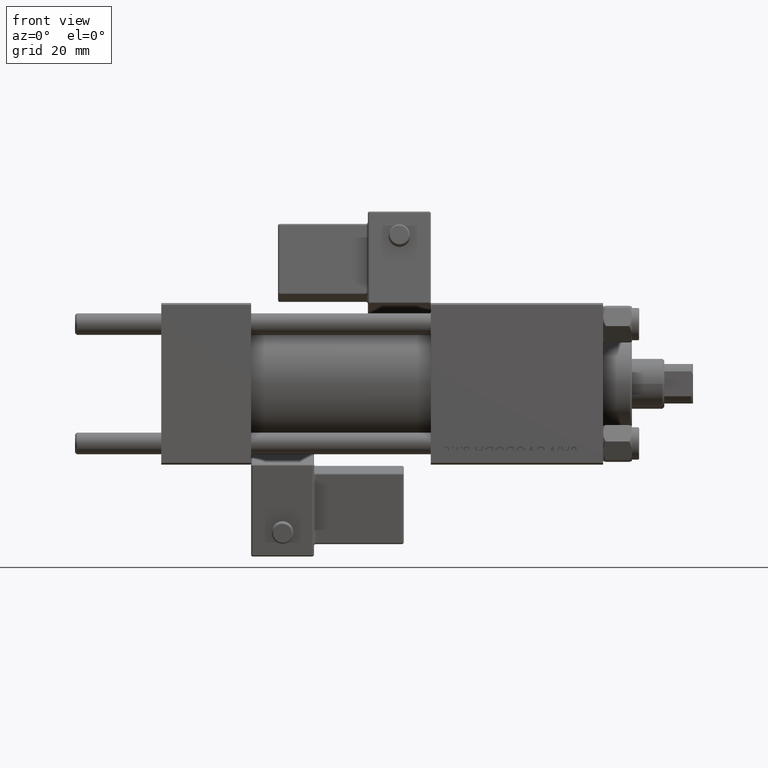
[diagram: clean part render]
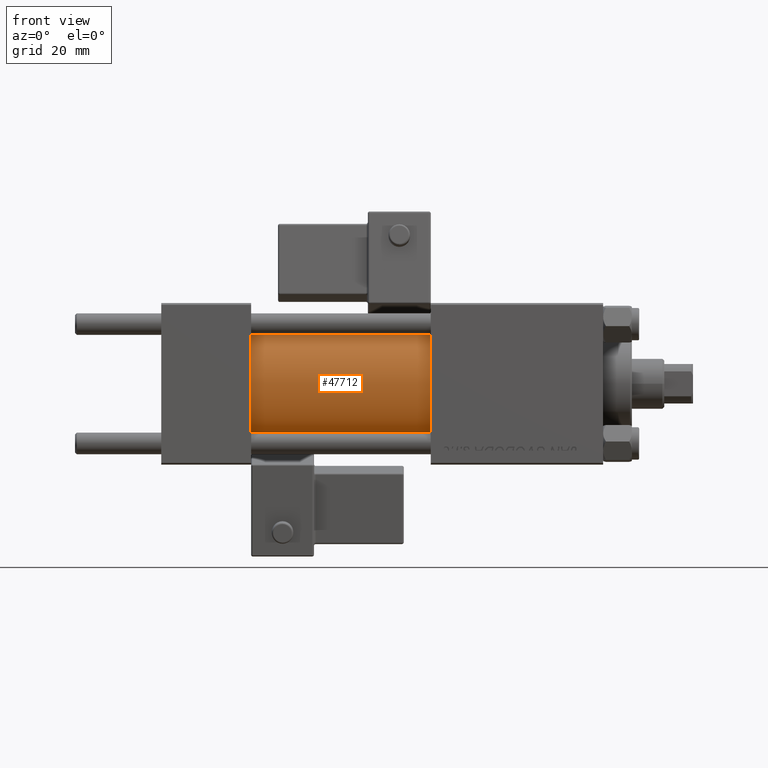
[diagram: same view with one face highlighted and labeled with its STEP entity id]
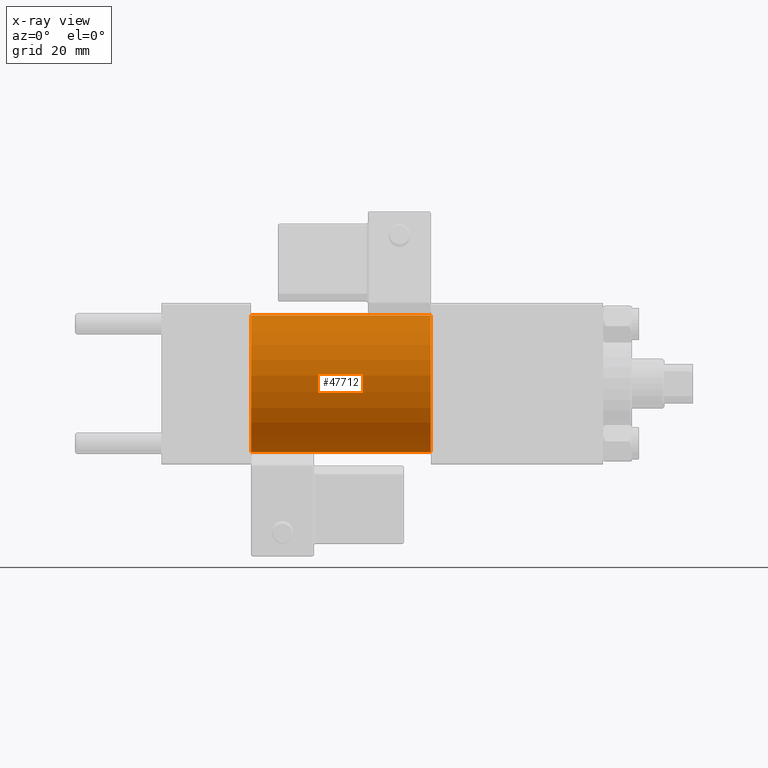
[diagram: x-ray of the same camera — body ghosted, the highlighted face saturated]
A machine part, front view. The second image highlights one B-rep face of the part: STEP entity #47712.
The next image is the same camera in x-ray: the body ghosted, the highlighted face saturated — about 0% of this face is hidden behind the body in this view.
In plain terms, the highlighted cylindrical surface (partial cylindrical patch) has radius 19 mm, axis along (-1, -0, -0).
Its self-contained STEP definition (entity closure, byte-faithful):
#684 = VERTEX_POINT ( 'NONE', #10884 ) ;
#1831 = ORIENTED_EDGE ( 'NONE', *, *, #13088, .F. ) ;
#1960 = DIRECTION ( 'NONE',  ( 1.000000000000000000, 0.000000000000000000, 0.000000000000000000 ) ) ;
#2895 = ORIENTED_EDGE ( 'NONE', *, *, #46244, .T. ) ;
#5051 = CARTESIAN_POINT ( 'NONE',  ( 75.00000000000001421, 0.000000000000000000, 19.00000000000000000 ) ) ;
#5408 = DIRECTION ( 'NONE',  ( -1.000000000000000000, -0.000000000000000000, -0.000000000000000000 ) ) ;
#8856 = CARTESIAN_POINT ( 'NONE',  ( 75.00000000000001421, 0.000000000000000000, 0.000000000000000000 ) ) ;
#10884 = CARTESIAN_POINT ( 'NONE',  ( 25.00000000000000000, 0.000000000000000000, 19.00000000000000000 ) ) ;
#13088 = EDGE_CURVE ( 'NONE', #47578, #24386, #27761, .T. ) ;
#13274 = DIRECTION ( 'NONE',  ( -1.000000000000000000, -0.000000000000000000, -0.000000000000000000 ) ) ;
#13832 = EDGE_LOOP ( 'NONE', ( #1831, #38668, #2895, #43726 ) ) ;
#15773 = CARTESIAN_POINT ( 'NONE',  ( 75.00000000000001421, 2.326828918379970970E-15, -19.00000000000000000 ) ) ;
#16009 = VERTEX_POINT ( 'NONE', #24299 ) ;
#16981 = LINE ( 'NONE', #5051, #42183 ) ;
#18215 = AXIS2_PLACEMENT_3D ( 'NONE', #34218, #1960, #50361 ) ;
#20097 = DIRECTION ( 'NONE',  ( -1.000000000000000000, -0.000000000000000000, -0.000000000000000000 ) ) ;
#20255 = CARTESIAN_POINT ( 'NONE',  ( 25.00000000000000000, 0.000000000000000000, 0.000000000000000000 ) ) ;
#24222 = DIRECTION ( 'NONE',  ( 0.000000000000000000, 0.000000000000000000, 1.000000000000000000 ) ) ;
#24299 = CARTESIAN_POINT ( 'NONE',  ( 75.00000000000001421, 0.000000000000000000, 19.00000000000000000 ) ) ;
#24359 = EDGE_CURVE ( 'NONE', #16009, #47578, #30001, .T. ) ;
#24386 = VERTEX_POINT ( 'NONE', #37448 ) ;
#26557 = EDGE_CURVE ( 'NONE', #684, #24386, #27564, .T. ) ;
#27198 = VECTOR ( 'NONE', #20097, 1000.000000000000000 ) ;
#27564 = CIRCLE ( 'NONE', #35127, 19.00000000000000000 ) ;
#27761 = LINE ( 'NONE', #48121, #27198 ) ;
#28954 = DIRECTION ( 'NONE',  ( 0.000000000000000000, 0.000000000000000000, 1.000000000000000000 ) ) ;
#30001 = CIRCLE ( 'NONE', #18215, 19.00000000000000000 ) ;
#34218 = CARTESIAN_POINT ( 'NONE',  ( 75.00000000000001421, 0.000000000000000000, 0.000000000000000000 ) ) ;
#35127 = AXIS2_PLACEMENT_3D ( 'NONE', #20255, #39804, #24222 ) ;
#37448 = CARTESIAN_POINT ( 'NONE',  ( 25.00000000000000000, 2.326828918379970970E-15, -19.00000000000000000 ) ) ;
#38668 = ORIENTED_EDGE ( 'NONE', *, *, #24359, .F. ) ;
#39804 = DIRECTION ( 'NONE',  ( 1.000000000000000000, -0.000000000000000000, 0.000000000000000000 ) ) ;
#41632 = FACE_OUTER_BOUND ( 'NONE', #13832, .T. ) ;
#42183 = VECTOR ( 'NONE', #13274, 1000.000000000000000 ) ;
#42258 = AXIS2_PLACEMENT_3D ( 'NONE', #8856, #5408, #28954 ) ;
#43726 = ORIENTED_EDGE ( 'NONE', *, *, #26557, .T. ) ;
#46244 = EDGE_CURVE ( 'NONE', #16009, #684, #16981, .T. ) ;
#47578 = VERTEX_POINT ( 'NONE', #15773 ) ;
#47712 = ADVANCED_FACE ( 'NONE', ( #41632 ), #49320, .T. ) ;
#48121 = CARTESIAN_POINT ( 'NONE',  ( 75.00000000000001421, 2.326828918379970970E-15, -19.00000000000000000 ) ) ;
#49320 = CYLINDRICAL_SURFACE ( 'NONE', #42258, 19.00000000000000000 ) ;
#50361 = DIRECTION ( 'NONE',  ( 0.000000000000000000, 0.000000000000000000, -1.000000000000000000 ) ) ;